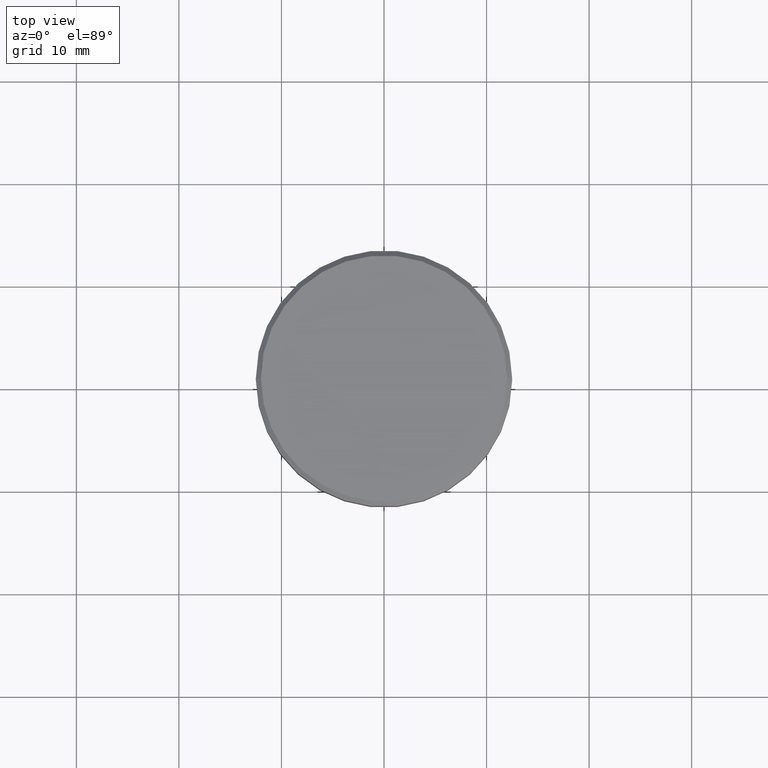
[diagram: clean part render]
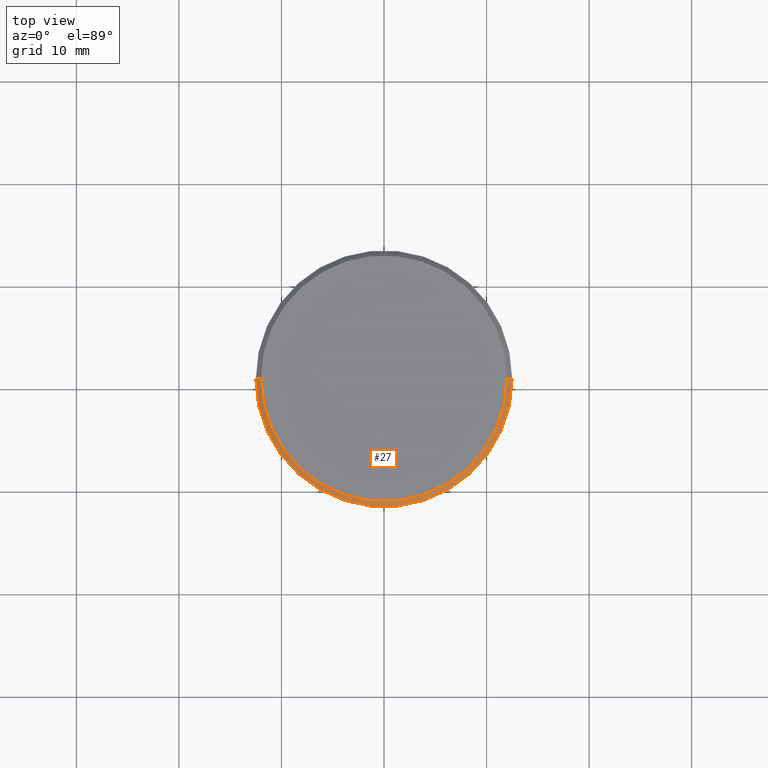
[diagram: same view with one face highlighted and labeled with its STEP entity id]
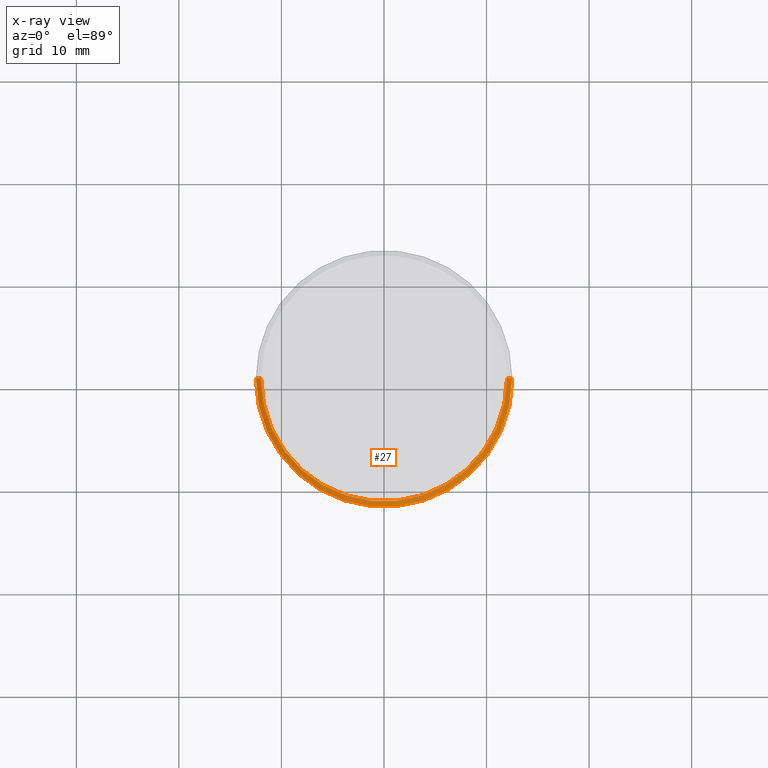
[diagram: x-ray of the same camera — body ghosted, the highlighted face saturated]
A machine part, top view. The second image highlights one B-rep face of the part: STEP entity #27.
The next image is the same camera in x-ray: the body ghosted, the highlighted face saturated — about 0% of this face is hidden behind the body in this view.
In plain terms, the highlighted conical surface has half-angle 45 deg.
Its self-contained STEP definition (entity closure, byte-faithful):
#27 = ADVANCED_FACE ( 'NONE', ( #558 ), #933, .T. ) ;
#31 = EDGE_CURVE ( 'NONE', #1149, #811, #631, .T. ) ;
#75 = CARTESIAN_POINT ( 'NONE',  ( 11.99999999999999645, 1.500192328955507537E-15, 0.000000000000000000 ) ) ;
#92 = CARTESIAN_POINT ( 'NONE',  ( -12.50000000000000000, 1.530808498934191521E-15, -0.5000000000000056621 ) ) ;
#105 = DIRECTION ( 'NONE',  ( -1.000000000000000000, 0.000000000000000000, 0.000000000000000000 ) ) ;
#190 = LINE ( 'NONE', #275, #625 ) ;
#220 = VECTOR ( 'NONE', #1038, 1000.000000000000000 ) ;
#226 = ORIENTED_EDGE ( 'NONE', *, *, #31, .F. ) ;
#259 = DIRECTION ( 'NONE',  ( 0.7071067811865463515, 8.659560562354919300E-17, -0.7071067811865487940 ) ) ;
#275 = CARTESIAN_POINT ( 'NONE',  ( 11.99999999999999645, 1.469576158976823553E-15, 0.000000000000000000 ) ) ;
#288 = DIRECTION ( 'NONE',  ( 1.000000000000000000, 0.000000000000000000, 0.000000000000000000 ) ) ;
#411 = DIRECTION ( 'NONE',  ( -0.000000000000000000, -0.000000000000000000, 1.000000000000000000 ) ) ;
#538 = EDGE_LOOP ( 'NONE', ( #891, #1030, #1003, #226 ) ) ;
#544 = DIRECTION ( 'NONE',  ( 0.000000000000000000, 0.000000000000000000, -1.000000000000000000 ) ) ;
#558 = FACE_OUTER_BOUND ( 'NONE', #538, .T. ) ;
#579 = CIRCLE ( 'NONE', #672, 11.99999999999999645 ) ;
#595 = DIRECTION ( 'NONE',  ( 1.000000000000000000, 0.000000000000000000, 0.000000000000000000 ) ) ;
#596 = LINE ( 'NONE', #605, #220 ) ;
#605 = CARTESIAN_POINT ( 'NONE',  ( -11.99999999999999645, 0.000000000000000000, 0.000000000000000000 ) ) ;
#612 = EDGE_CURVE ( 'NONE', #807, #811, #596, .T. ) ;
#625 = VECTOR ( 'NONE', #259, 1000.000000000000000 ) ;
#631 = CIRCLE ( 'NONE', #1058, 12.50000000000000000 ) ;
#672 = AXIS2_PLACEMENT_3D ( 'NONE', #767, #411, #595 ) ;
#721 = EDGE_CURVE ( 'NONE', #807, #847, #579, .T. ) ;
#729 = CARTESIAN_POINT ( 'NONE',  ( 0.000000000000000000, 0.000000000000000000, -0.5000000000000056621 ) ) ;
#767 = CARTESIAN_POINT ( 'NONE',  ( 0.000000000000000000, 0.000000000000000000, 0.000000000000000000 ) ) ;
#807 = VERTEX_POINT ( 'NONE', #869 ) ;
#811 = VERTEX_POINT ( 'NONE', #92 ) ;
#847 = VERTEX_POINT ( 'NONE', #75 ) ;
#869 = CARTESIAN_POINT ( 'NONE',  ( -11.99999999999999645, 0.000000000000000000, 0.000000000000000000 ) ) ;
#891 = ORIENTED_EDGE ( 'NONE', *, *, #924, .F. ) ;
#918 = AXIS2_PLACEMENT_3D ( 'NONE', #1173, #925, #105 ) ;
#924 = EDGE_CURVE ( 'NONE', #847, #1149, #190, .T. ) ;
#925 = DIRECTION ( 'NONE',  ( 0.000000000000000000, 0.000000000000000000, -1.000000000000000000 ) ) ;
#933 = CONICAL_SURFACE ( 'NONE', #918, 11.99999999999999645, 0.7853981633974466137 ) ;
#1003 = ORIENTED_EDGE ( 'NONE', *, *, #612, .T. ) ;
#1030 = ORIENTED_EDGE ( 'NONE', *, *, #721, .F. ) ;
#1038 = DIRECTION ( 'NONE',  ( -0.7071067811865463515, 0.000000000000000000, -0.7071067811865487940 ) ) ;
#1058 = AXIS2_PLACEMENT_3D ( 'NONE', #729, #544, #288 ) ;
#1149 = VERTEX_POINT ( 'NONE', #1169 ) ;
#1169 = CARTESIAN_POINT ( 'NONE',  ( 12.50000000000000000, 0.000000000000000000, -0.5000000000000056621 ) ) ;
#1173 = CARTESIAN_POINT ( 'NONE',  ( 0.000000000000000000, 0.000000000000000000, 0.000000000000000000 ) ) ;